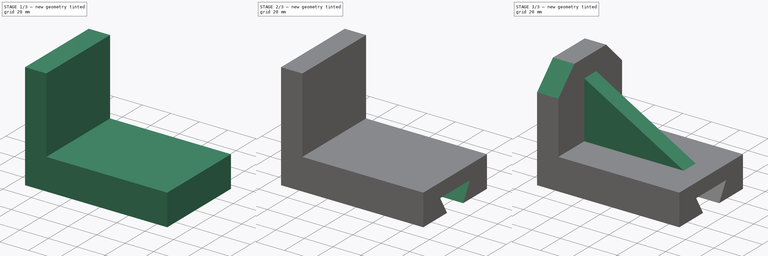
[diagram: build sequence overview — one tinted view per stage of 3, left to right]
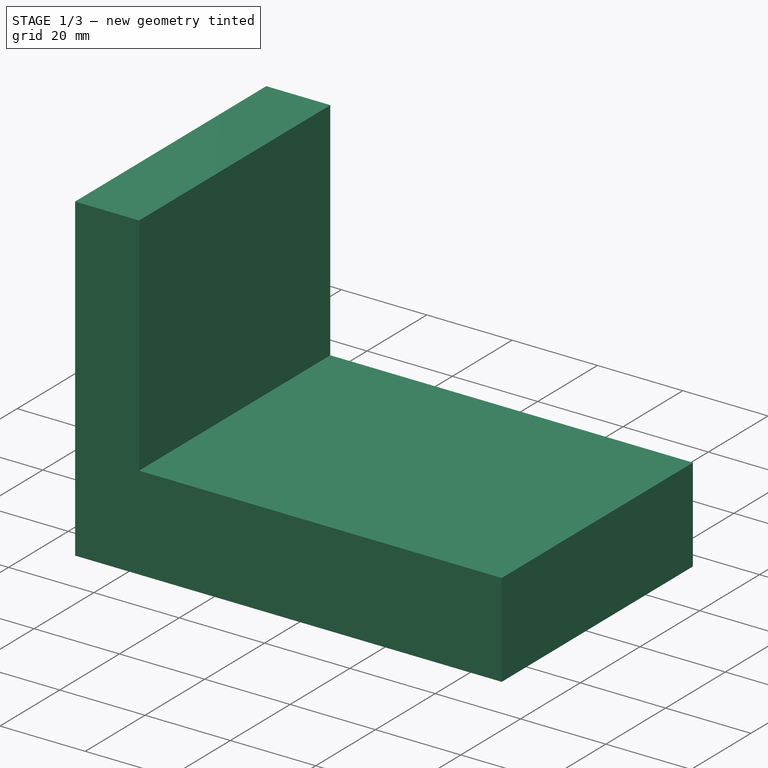
[diagram: stage 1 of 3 — iso view after this stage's code; geometry added in this stage tinted green]
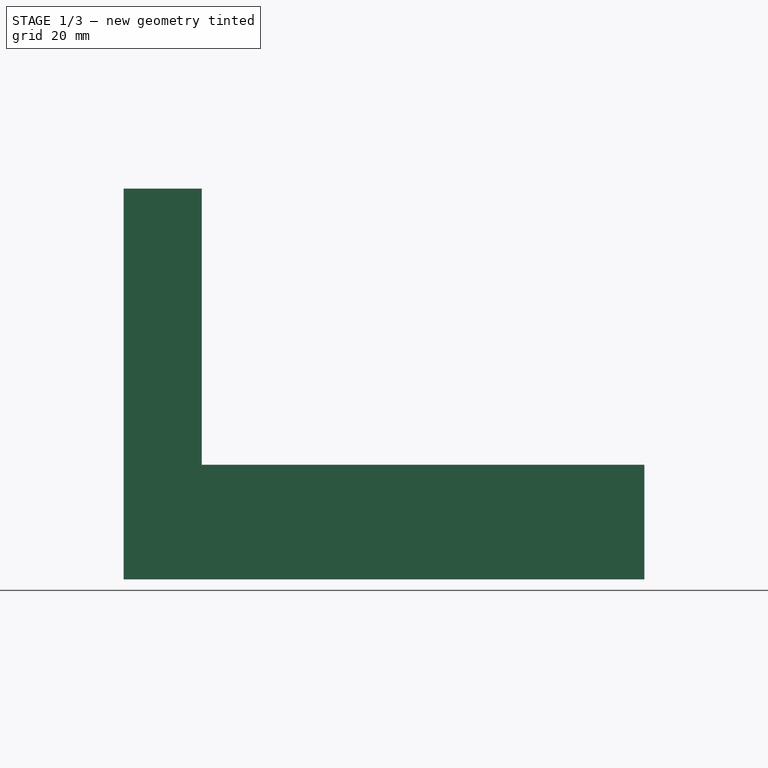
[diagram: stage 1 of 3 — front view after this stage's code; geometry added in this stage tinted green]
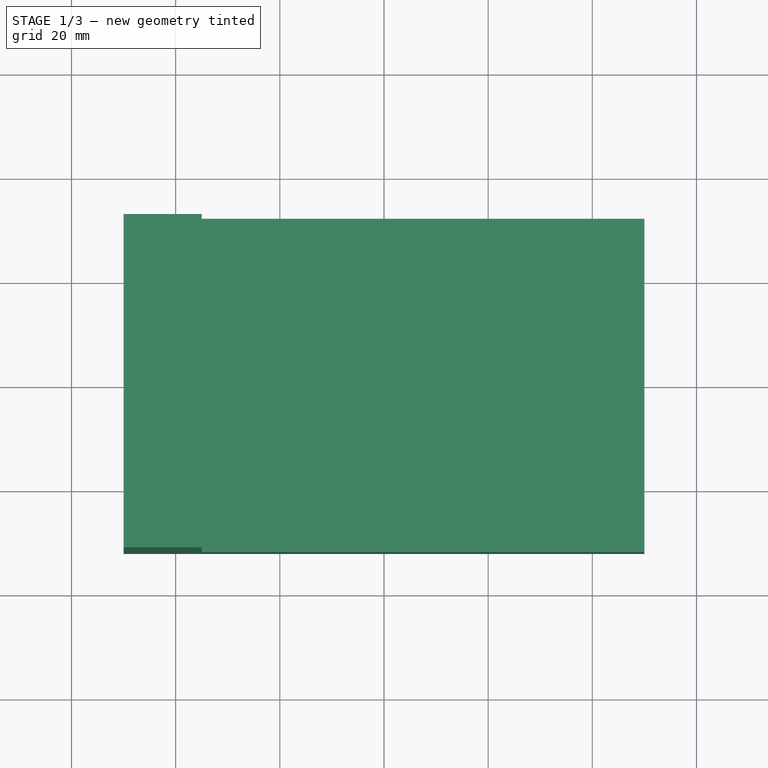
[diagram: stage 1 of 3 — top view after this stage's code; geometry added in this stage tinted green]
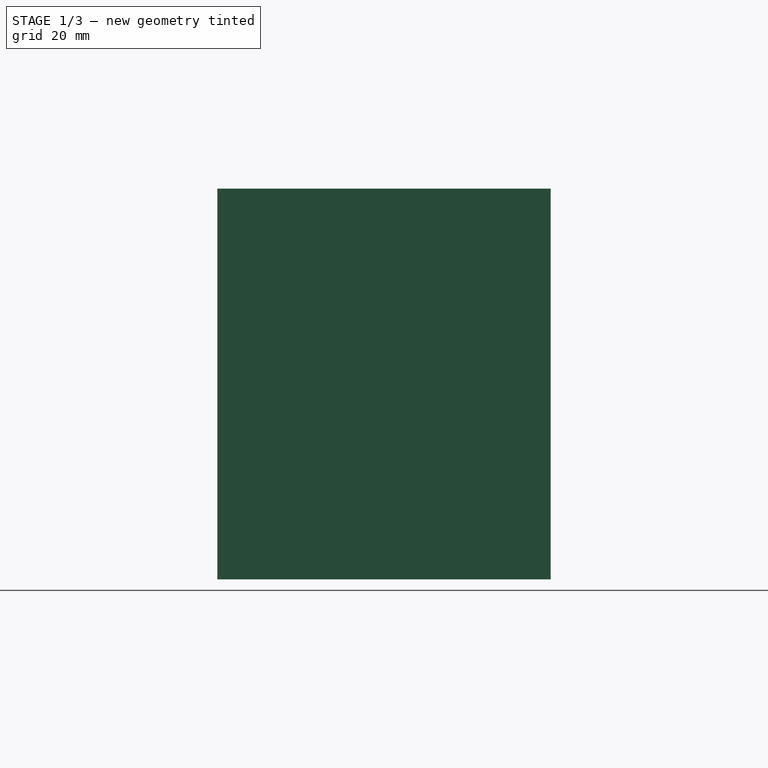
[diagram: stage 1 of 3 — right view after this stage's code; geometry added in this stage tinted green]
FCSTD DOCUMENT  (FreeCAD 0.16R)
Label: Fig 3.18 Final
License: All rights reserved
LicenseURL: http://en.wikipedia.org/wiki/All_rights_reserved
objects: Sketcher::SketchObject×5, PartDesign::Pad×3, PartDesign::Pocket×2
note: 15 computed .brp shape members not serialized (recipe doc carries the construction recipe); baked Part::Feature solids carry a one-line shape summary decoded from their .brp

FEATURE [Sketcher::SketchObject] Sketch
  sketch-geometry (4):
    g0: LineSegment StartX=-50 StartY=32 StartZ=0 EndX=50 EndY=32 EndZ=0
    g1: LineSegment StartX=50 StartY=32 StartZ=0 EndX=50 EndY=-32 EndZ=0
    g2: LineSegment StartX=50 StartY=-32 StartZ=0 EndX=-50 EndY=-32 EndZ=0
    g3: LineSegment StartX=-50 StartY=-32 StartZ=0 EndX=-50 EndY=32 EndZ=0
  constraints (12):
    c: Coincident(g0,g1)
    c: Coincident(g1,g2)
    c: Coincident(g2,g3)
    c: Coincident(g3,g0)
    c: Horizontal(g0)
    c: Horizontal(g2)
    c: Vertical(g1)
    c: Vertical(g3)
    c: Symmetric(g1,g2,g-2)
    c: Symmetric(g1,g0,g-1)
    c: DistanceX(g2,g2) = 100
    c: DistanceY(g3,g3) = 64
FEATURE [PartDesign::Pad] Pad
  Length = 22
  Length2 = 100
  Sketch = -> Sketch
  Type = 0
FEATURE [Sketcher::SketchObject] Sketch001
  ExternalGeometry = -> [Pad]
  Placement = pos=(0,0,22) rot=(0,0,1;0rad)
  Support = -> Pad [Face6]
  sketch-geometry (4):
    g0: LineSegment StartX=-50 StartY=32 StartZ=0 EndX=-35 EndY=32 EndZ=0
    g1: LineSegment StartX=-35 StartY=32 StartZ=0 EndX=-35 EndY=-32 EndZ=0
    g2: LineSegment StartX=-35 StartY=-32 StartZ=0 EndX=-50 EndY=-32 EndZ=0
    g3: LineSegment StartX=-50 StartY=-32 StartZ=0 EndX=-50 EndY=32 EndZ=0
  constraints (11):
    c: Coincident(g0,g1)
    c: Coincident(g1,g2)
    c: Coincident(g2,g3)
    c: Coincident(g3,g0)
    c: Horizontal(g0)
    c: Horizontal(g2)
    c: Vertical(g1)
    c: Vertical(g3)
    c: Coincident(g0,g-3)
    c: Coincident(g2,g-3)
    c: DistanceX(g0,g0) = 15
FEATURE [PartDesign::Pad] Pad001
  Length = 53
  Length2 = 100
  Sketch = -> Sketch001
  Type = 0
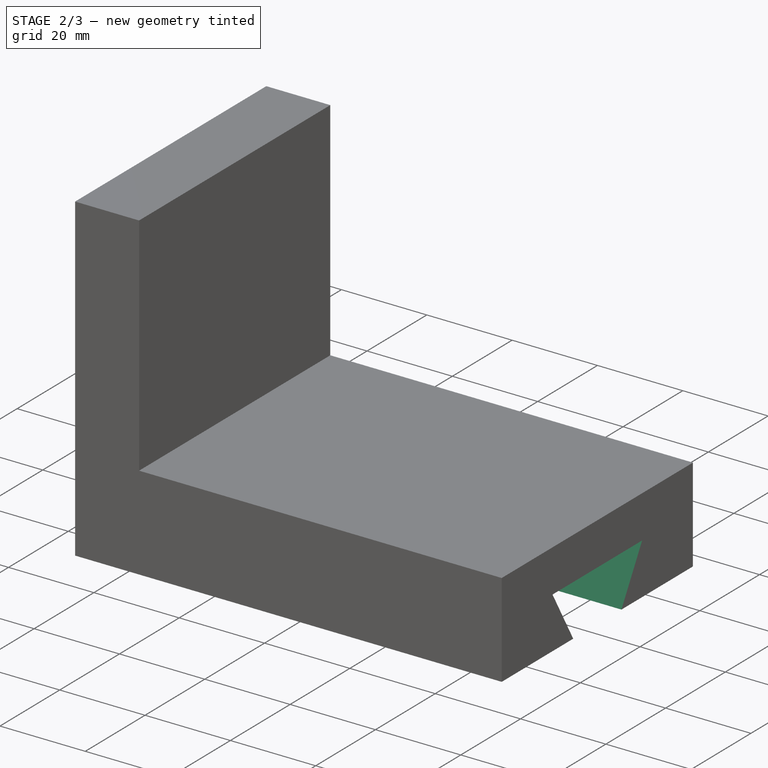
[diagram: stage 2 of 3 — iso view after this stage's code; geometry added in this stage tinted green]
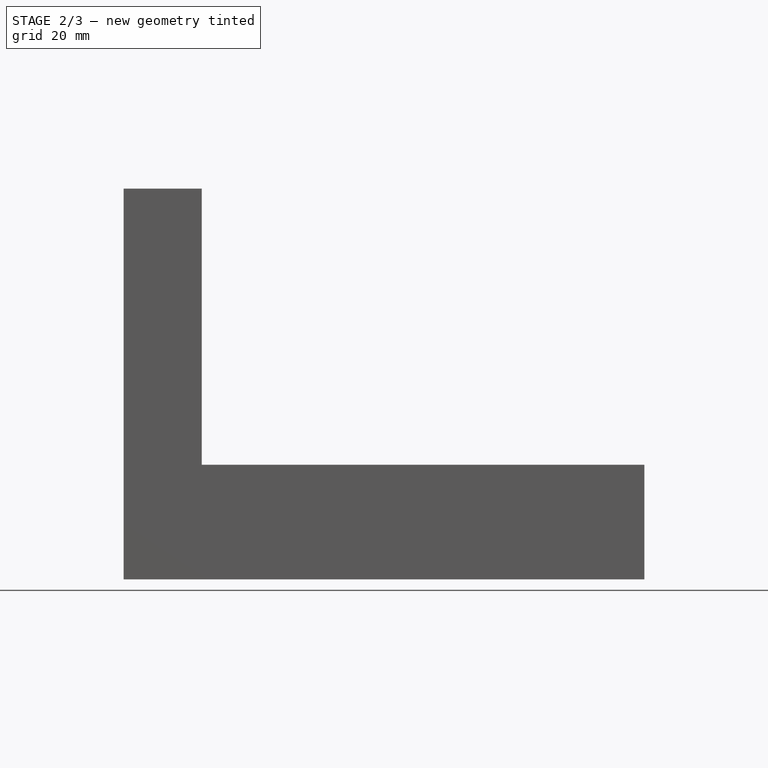
[diagram: stage 2 of 3 — front view after this stage's code; geometry added in this stage tinted green]
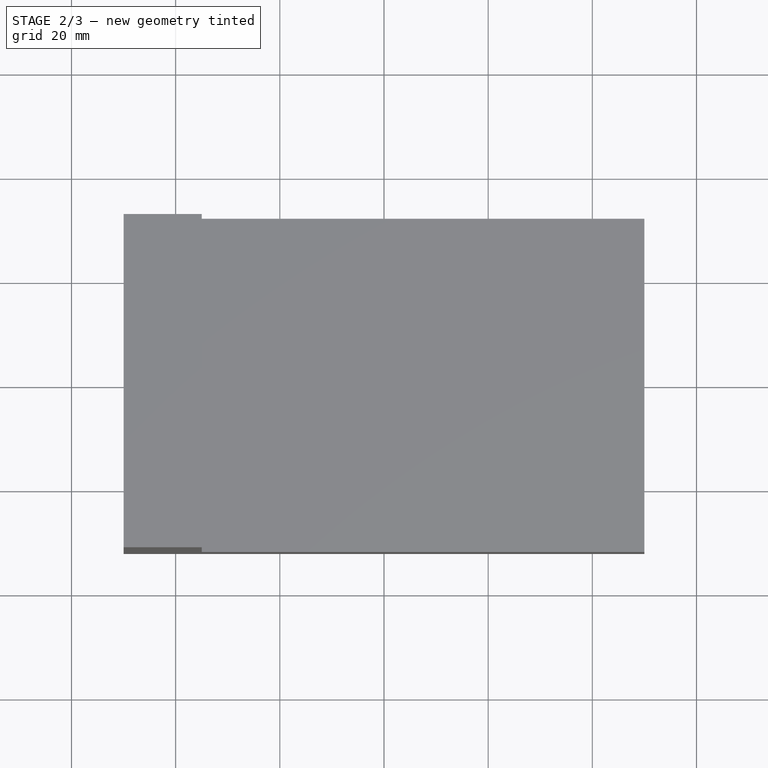
[diagram: stage 2 of 3 — top view after this stage's code; geometry added in this stage tinted green]
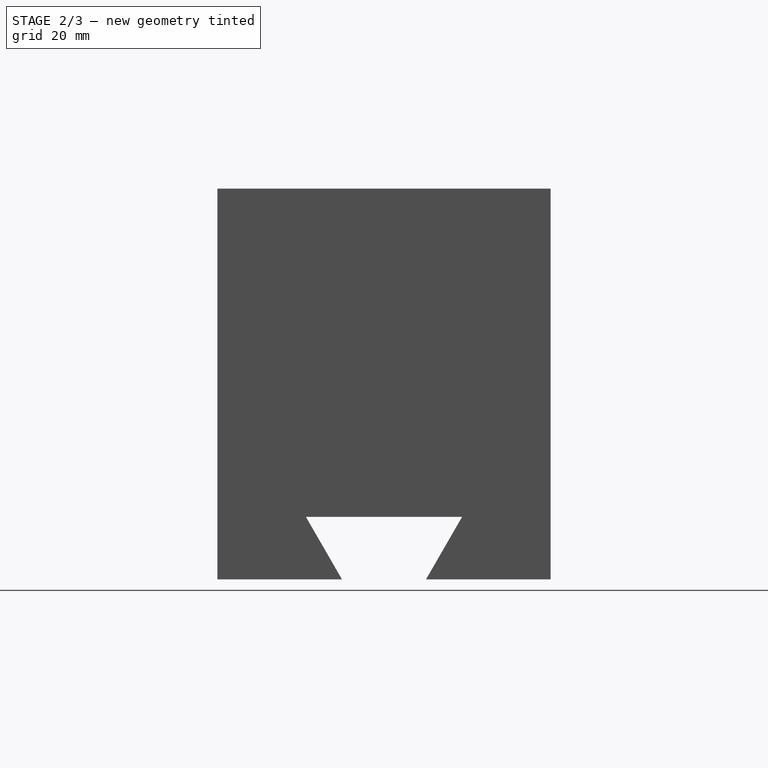
[diagram: stage 2 of 3 — right view after this stage's code; geometry added in this stage tinted green]
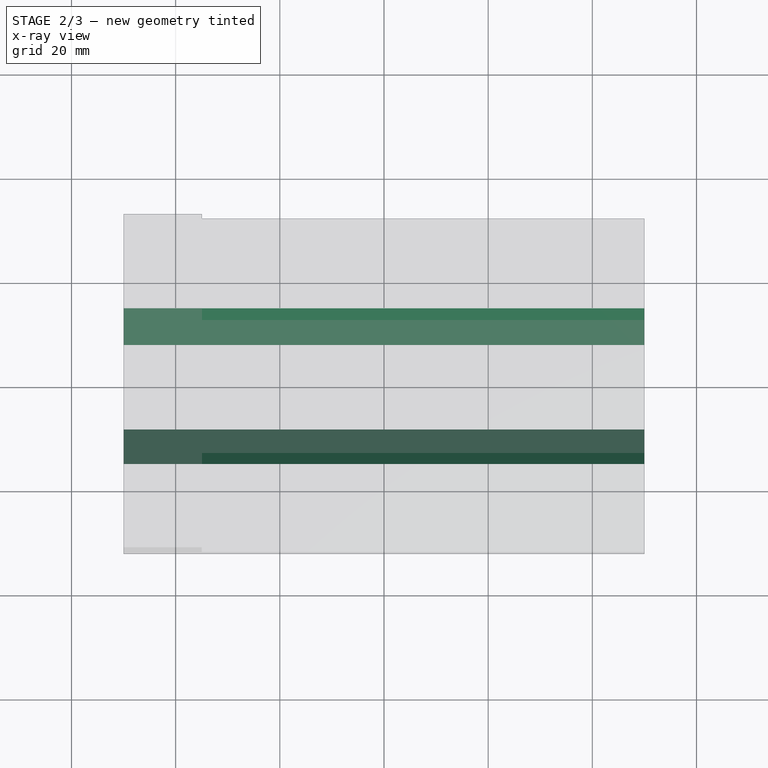
[diagram: stage 2 of 3 — x-ray composite at the top view; earlier geometry ghosted, this stage's added geometry solid]
FEATURE [Sketcher::SketchObject] Sketch002
  ExternalGeometry = -> [Pad001]
  Placement = pos=(50,0,0) rot=(0.57735,0.57735,0.57735;2.0944rad)
  Support = -> Pad001 [Face2]
  sketch-geometry (4):
    g0: LineSegment StartX=-8.0718 StartY=0 StartZ=0 EndX=8.0718 EndY=0 EndZ=0
    g1: LineSegment StartX=8.0718 StartY=0 StartZ=0 EndX=15 EndY=12 EndZ=0
    g2: LineSegment StartX=15 StartY=12 StartZ=0 EndX=-15 EndY=12 EndZ=0
    g3: LineSegment StartX=-15 StartY=12 StartZ=0 EndX=-8.0718 EndY=0 EndZ=0
  constraints (12):
    c: Horizontal(g0)
    c: Coincident(g0,g1)
    c: Coincident(g1,g2)
    c: Horizontal(g2)
    c: Coincident(g2,g3)
    c: Coincident(g3,g0)
    c: Symmetric(g0,g0,g-2)
    c: Symmetric(g1,g2,g-2)
    c: PointOnObject(g-1,g0)
    c: DistanceY(g-3,g1) = 12
    c: Angle(g-3,g1) = 1.0472
    c: DistanceX(g2,g2) = 30
FEATURE [PartDesign::Pocket] Pocket
  Length = 5
  Sketch = -> Sketch002
  Type = 1
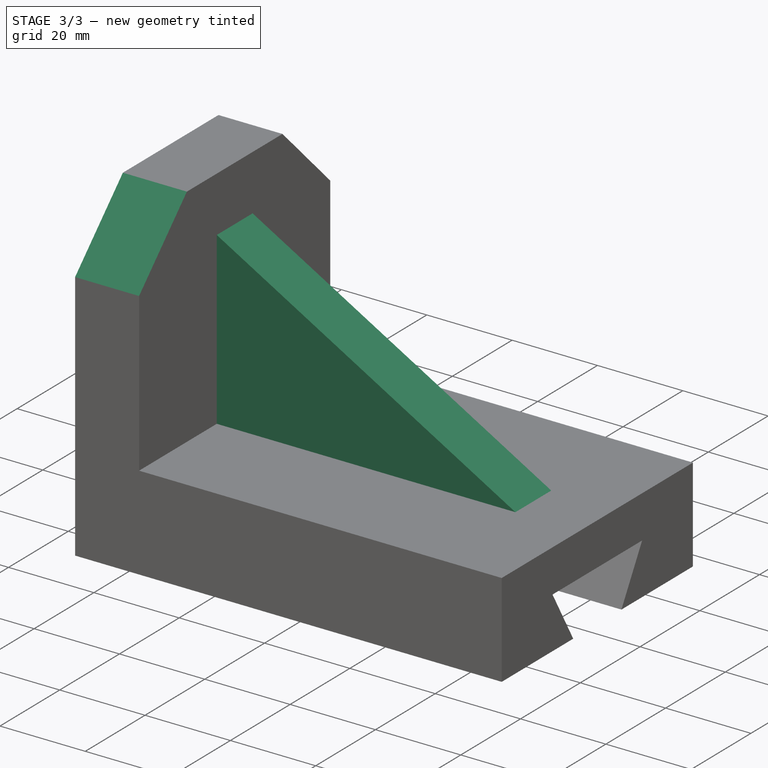
[diagram: stage 3 of 3 — iso view after this stage's code; geometry added in this stage tinted green]
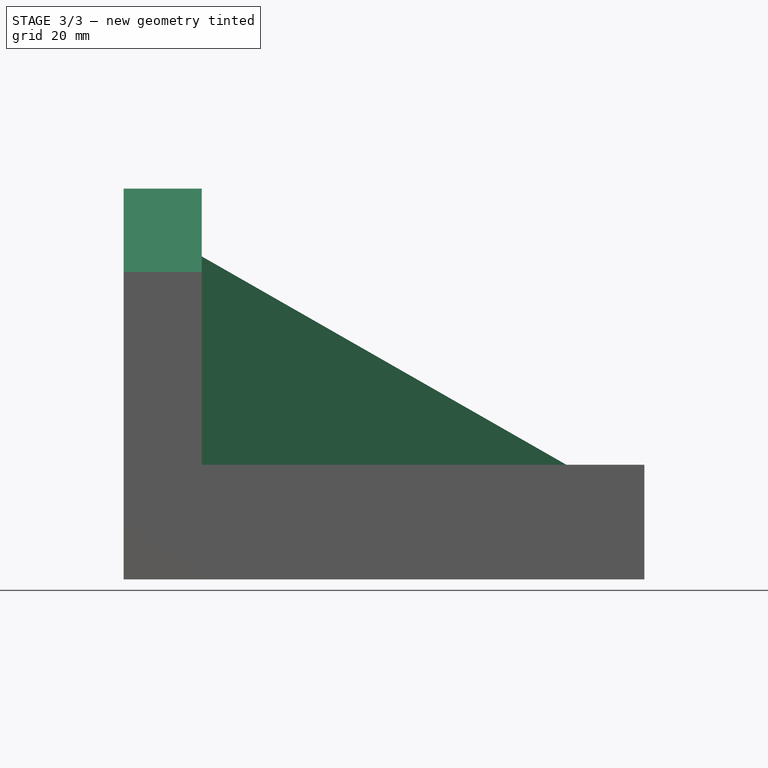
[diagram: stage 3 of 3 — front view after this stage's code; geometry added in this stage tinted green]
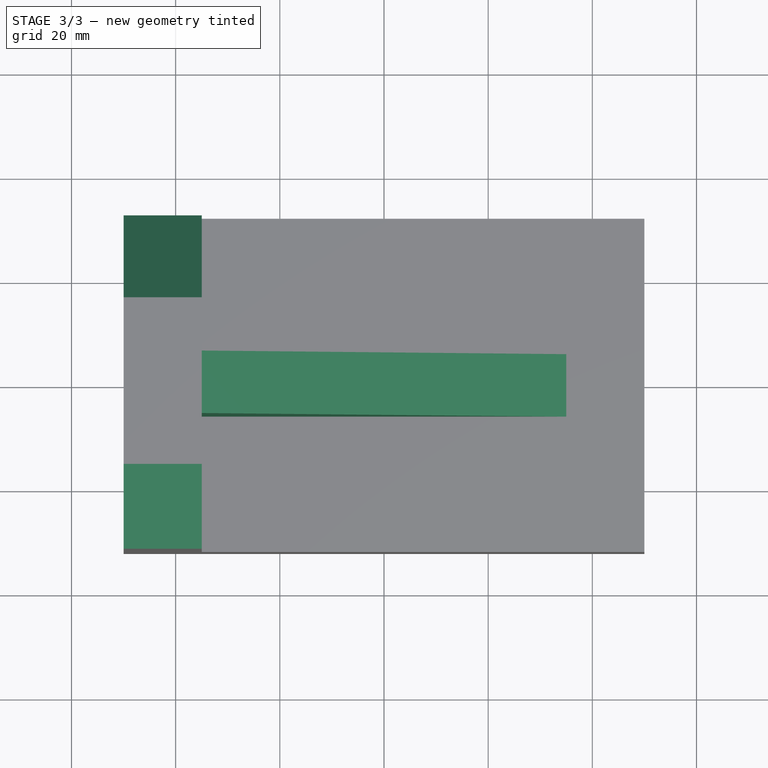
[diagram: stage 3 of 3 — top view after this stage's code; geometry added in this stage tinted green]
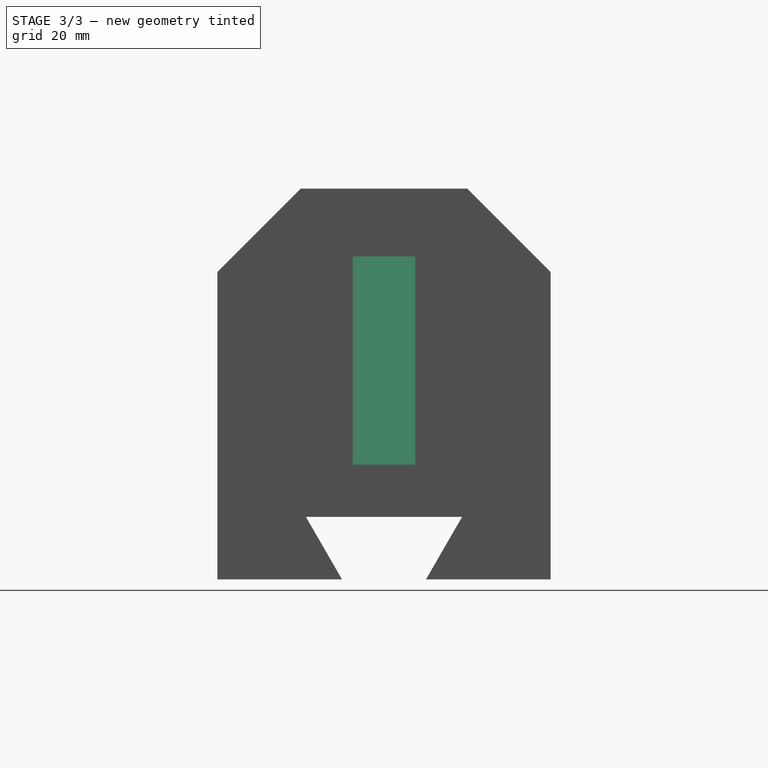
[diagram: stage 3 of 3 — right view after this stage's code; geometry added in this stage tinted green]
FEATURE [Sketcher::SketchObject] Sketch003
  Placement = pos=(0,0,0) rot=(-1,0,0;4.71239rad)
  sketch-geometry (3):
    g0: LineSegment StartX=-35 StartY=62 StartZ=0 EndX=-35 EndY=22 EndZ=0
    g1: LineSegment StartX=-35 StartY=22 StartZ=0 EndX=35 EndY=22 EndZ=0
    g2: LineSegment StartX=35 StartY=22 StartZ=0 EndX=-35 EndY=62 EndZ=0
  constraints (9):
    c: Vertical(g0)
    c: Coincident(g0,g1)
    c: Horizontal(g1)
    c: Coincident(g1,g2)
    c: Coincident(g2,g0)
    c: DistanceY(g-1,g0) = 22
    c: DistanceX(g0,g-1) = 35
    c: DistanceY(g-1,g0) = 62
    c: DistanceX(g0,g1) = 70
FEATURE [PartDesign::Pad] Pad002
  Length = 12
  Length2 = 100
  Midplane = true
  Placement = pos=(0,0,0) rot=(-1,0,0;4.71239rad)
  Sketch = -> Sketch003
  Type = 0
FEATURE [Sketcher::SketchObject] Sketch004
  ExternalGeometry = -> [Pocket]
  Placement = pos=(-35,0,0) rot=(0.57735,0.57735,0.57735;2.0944rad)
  Support = -> Pocket [Face7]
  sketch-geometry (6):
    g0: LineSegment StartX=-32 StartY=59 StartZ=0 EndX=-32 EndY=75 EndZ=0
    g1: LineSegment StartX=-32 StartY=75 StartZ=0 EndX=-16 EndY=75 EndZ=0
    g2: LineSegment StartX=-16 StartY=75 StartZ=0 EndX=-32 EndY=59 EndZ=0
    g3: LineSegment StartX=16 StartY=75 StartZ=0 EndX=32 EndY=75 EndZ=0
    g4: LineSegment StartX=32 StartY=75 StartZ=0 EndX=32 EndY=59 EndZ=0
    g5: LineSegment StartX=32 StartY=59 StartZ=0 EndX=16 EndY=75 EndZ=0
  constraints (16):
    c: Vertical(g0)
    c: Coincident(g0,g1)
    c: Horizontal(g1)
    c: Coincident(g1,g2)
    c: Coincident(g2,g0)
    c: Horizontal(g3)
    c: Coincident(g3,g4)
    c: Vertical(g4)
    c: Coincident(g4,g5)
    c: Coincident(g5,g3)
    c: DistanceX(g0,g1) = 16
    c: DistanceY(g0,g0) = 16
    c: Coincident(g0,g-3)
    c: Equal(g0,g4)
    c: DistanceX(g3,g3) = 16
    c: Coincident(g-3,g3)
FEATURE [PartDesign::Pocket] Pocket001
  Length = 5
  Sketch = -> Sketch004
  Type = 1
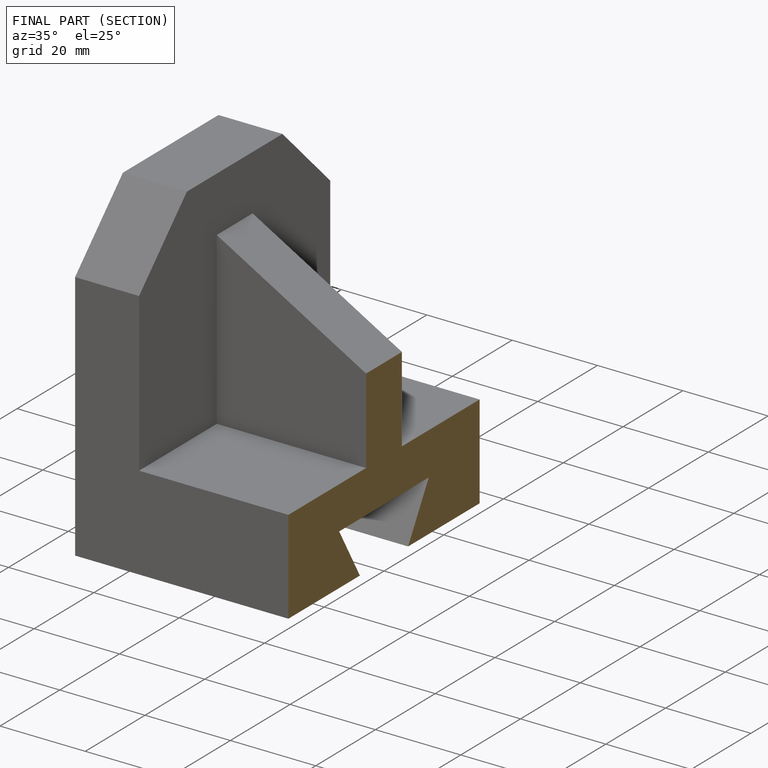
[diagram: finished part — half-section view (interior)]
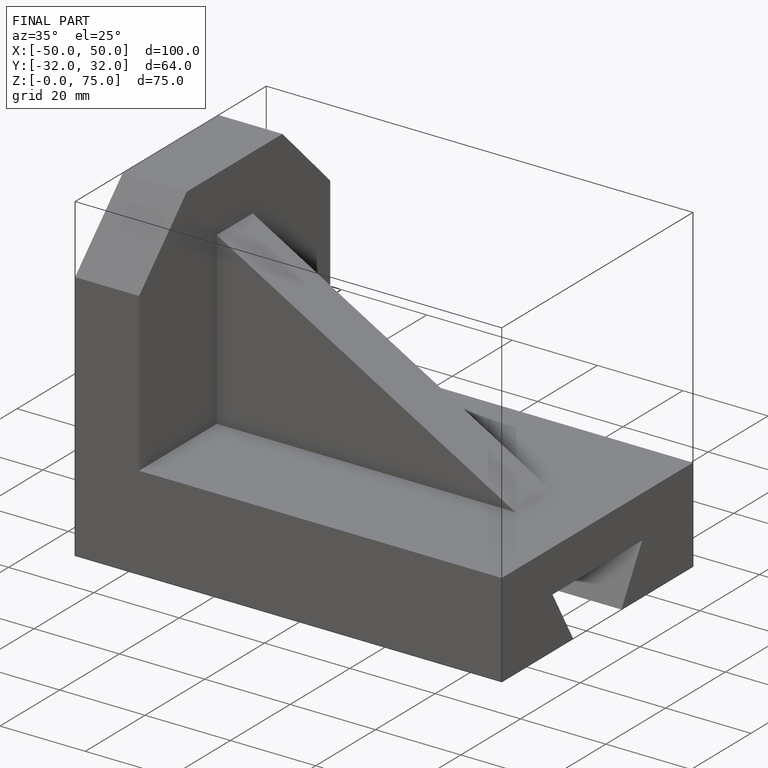
[diagram: finished part — iso view with bounding-box wireframe]
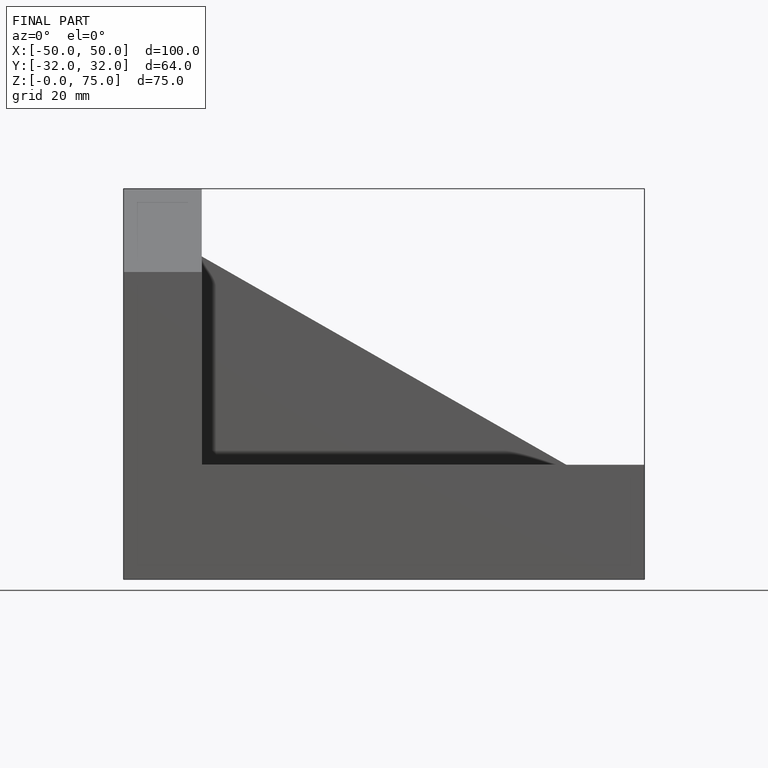
[diagram: finished part — front view with bounding-box wireframe]
